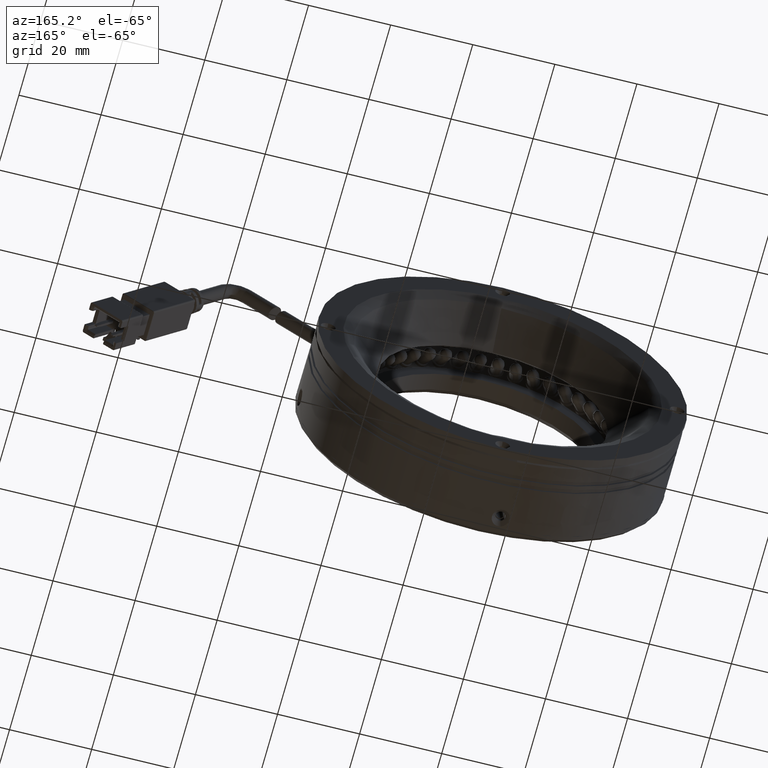
[diagram: clean part render]
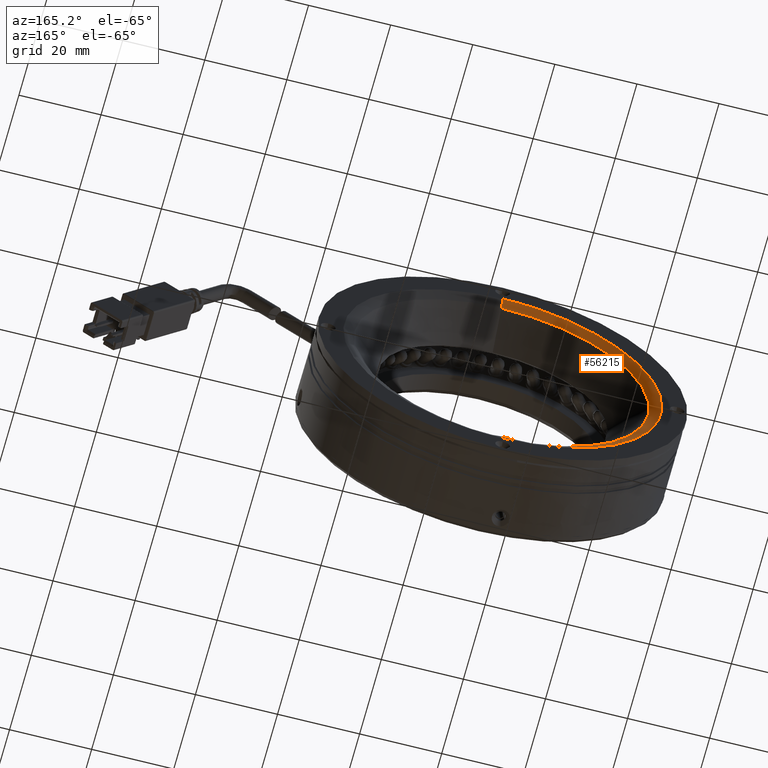
[diagram: same view with one face highlighted and labeled with its STEP entity id]
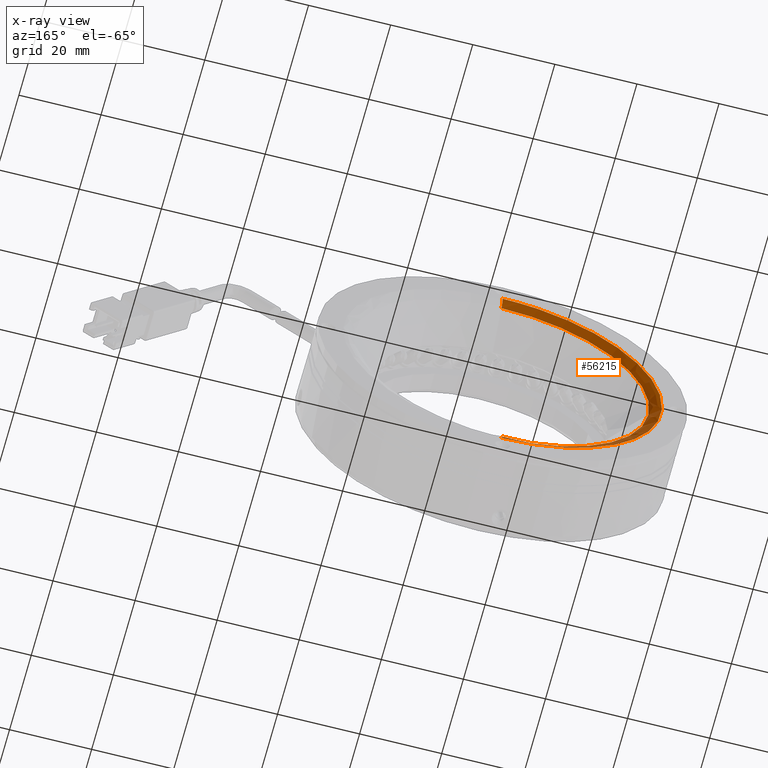
[diagram: x-ray of the same camera — body ghosted, the highlighted face saturated]
A machine part, auxiliary view. The second image highlights one B-rep face of the part: STEP entity #56215.
The next image is the same camera in x-ray: the body ghosted, the highlighted face saturated — about 0% of this face is hidden behind the body in this view.
In plain terms, the highlighted face is a freeform B-spline surface patch.
Its self-contained STEP definition (entity closure, byte-faithful):
#3422 = EDGE_CURVE ( 'NONE', #81952, #87832, #88767, .T. ) ;
#6177 = CARTESIAN_POINT ( 'NONE',  ( -53.99004085520083900, 38.97876601230222300, -42.62634949282938400 ) ) ;
#6282 = CIRCLE ( 'NONE', #92250, 4.000000000000003600 ) ;
#7083 = DIRECTION ( 'NONE',  ( 1.000000000000000000, 0.0000000000000000000, 0.0000000000000000000 ) ) ;
#7549 = CARTESIAN_POINT ( 'NONE',  ( -131.6468951046932100, 38.97876601230223100, 35.03050475666302800 ) ) ;
#7994 = CARTESIAN_POINT ( 'NONE',  ( -125.9900408552008200, 37.80719313704840100, -39.79792236808315000 ) ) ;
#11356 =( BOUNDED_CURVE ( )  B_SPLINE_CURVE ( 3, ( #123188, #81679, #113217, #50820 ),
 .UNSPECIFIED., .F., .F. ) 
 B_SPLINE_CURVE_WITH_KNOTS ( ( 4, 4 ),
 ( 0.0000000000000000000, 1.000000000000000000 ),
 .UNSPECIFIED. ) 
 CURVE ( )  GEOMETRIC_REPRESENTATION_ITEM ( )  RATIONAL_B_SPLINE_CURVE ( ( 1.000000000000000000, 0.3333333333333333700, 0.3333333333333333700, 1.000000000000000000 ) ) 
 REPRESENTATION_ITEM ( '' )  );
#18048 = CARTESIAN_POINT ( 'NONE',  ( -53.99004085520085300, 38.97876601230222300, -42.62634949282938400 ) ) ;
#23842 = CARTESIAN_POINT ( 'NONE',  ( -53.99004085520083200, 34.97876601230222300, 35.03050475666301400 ) ) ;
#28526 = CARTESIAN_POINT ( 'NONE',  ( -129.4968062881756900, 38.97876601230223800, 33.95546034840426600 ) ) ;
#29614 = AXIS2_PLACEMENT_3D ( 'NONE', #107833, #45463, #118326 ) ;
#30468 = AXIS2_PLACEMENT_3D ( 'NONE', #50461, #7083, #50422 ) ;
#34367 = DIRECTION ( 'NONE',  ( 0.0000000000000000000, 0.0000000000000000000, 1.000000000000000000 ) ) ;
#38970 = CARTESIAN_POINT ( 'NONE',  ( -53.99004085520085300, 38.97876601230223100, -41.55130508457061500 ) ) ;
#39190 = CIRCLE ( 'NONE', #29614, 36.00000000000000000 ) ;
#45463 = DIRECTION ( 'NONE',  ( 0.0000000000000000000, -1.000000000000000000, 0.0000000000000000000 ) ) ;
#49458 = CARTESIAN_POINT ( 'NONE',  ( -127.5103832375137200, 38.56736432820486000, 32.96224882307327400 ) ) ;
#50422 = DIRECTION ( 'NONE',  ( 0.0000000000000000000, 0.0000000000000000000, -1.000000000000000000 ) ) ;
#50461 = CARTESIAN_POINT ( 'NONE',  ( -53.99004085520083900, 34.97876601230222300, -42.62634949282938400 ) ) ;
#50820 = CARTESIAN_POINT ( 'NONE',  ( -53.99004085520083200, 38.97876601230222300, 35.03050475666301400 ) ) ;
#51273 = EDGE_CURVE ( 'NONE', #51725, #77164, #6282, .T. ) ;
#51725 = VERTEX_POINT ( 'NONE', #90449 ) ;
#53903 =( BOUNDED_SURFACE ( )  B_SPLINE_SURFACE ( 3, 3, ( 
 ( #90368, #7549, #80345, #18048 ),
 ( #90794, #28526, #101325, #38970 ),
 ( #111847, #49458, #122270, #59959 ),
 ( #132670, #70354, #7994, #80775 ) ),
 .UNSPECIFIED., .F., .F., .T. ) 
 B_SPLINE_SURFACE_WITH_KNOTS ( ( 4, 4 ),
 ( 4, 4 ),
 ( 0.0000000000000000000, 1.000000000000000000 ),
 ( 0.0000000000000000000, 1.000000000000000000 ),
 .UNSPECIFIED. ) 
 GEOMETRIC_REPRESENTATION_ITEM ( )  RATIONAL_B_SPLINE_SURFACE ( (
 ( 1.000000000000000000, 0.3333333333333334300, 0.3333333333333334300, 1.000000000000000000),
 ( 0.9492530216741906800, 0.3164176738913969700, 0.3164176738913969700, 0.9492530216741906800),
 ( 0.9492530216741906800, 0.3164176738913969700, 0.3164176738913969700, 0.9492530216741906800),
 ( 1.000000000000000000, 0.3333333333333334300, 0.3333333333333334300, 1.000000000000000000) ) ) 
 REPRESENTATION_ITEM ( '' )  SURFACE ( )  );
#56215 = ADVANCED_FACE ( 'NONE', ( #69599 ), #53903, .T. ) ;
#59959 = CARTESIAN_POINT ( 'NONE',  ( -53.99004085520085300, 38.56736432820486000, -40.55809355923963700 ) ) ;
#63911 = CARTESIAN_POINT ( 'NONE',  ( -53.99004085520083200, 37.80719313704840100, -39.79792236808318500 ) ) ;
#64830 = EDGE_CURVE ( 'NONE', #77164, #87832, #39190, .T. ) ;
#68970 = ORIENTED_EDGE ( 'NONE', *, *, #128003, .T. ) ;
#69599 = FACE_OUTER_BOUND ( 'NONE', #70897, .T. ) ;
#70354 = CARTESIAN_POINT ( 'NONE',  ( -125.9900408552008200, 37.80719313704840100, 32.20207763191682900 ) ) ;
#70897 = EDGE_LOOP ( 'NONE', ( #68970, #94084, #83377, #83452 ) ) ;
#77164 = VERTEX_POINT ( 'NONE', #123813 ) ;
#80345 = CARTESIAN_POINT ( 'NONE',  ( -131.6468951046932400, 38.97876601230223100, -42.62634949282935500 ) ) ;
#80775 = CARTESIAN_POINT ( 'NONE',  ( -53.99004085520085300, 37.80719313704840100, -39.79792236808317800 ) ) ;
#81679 = CARTESIAN_POINT ( 'NONE',  ( -131.6468951046932100, 38.97876601230221600, -42.62634949282938400 ) ) ;
#81952 = VERTEX_POINT ( 'NONE', #6177 ) ;
#83377 = ORIENTED_EDGE ( 'NONE', *, *, #64830, .T. ) ;
#83452 = ORIENTED_EDGE ( 'NONE', *, *, #3422, .F. ) ;
#87832 = VERTEX_POINT ( 'NONE', #63911 ) ;
#88767 = CIRCLE ( 'NONE', #30468, 4.000000000000003600 ) ;
#90368 = CARTESIAN_POINT ( 'NONE',  ( -53.99004085520083200, 38.97876601230222300, 35.03050475666301400 ) ) ;
#90449 = CARTESIAN_POINT ( 'NONE',  ( -53.99004085520083200, 38.97876601230222300, 35.03050475666301400 ) ) ;
#90794 = CARTESIAN_POINT ( 'NONE',  ( -53.99004085520082400, 38.97876601230223100, 33.95546034840425200 ) ) ;
#92250 = AXIS2_PLACEMENT_3D ( 'NONE', #23842, #96652, #34367 ) ;
#94084 = ORIENTED_EDGE ( 'NONE', *, *, #51273, .T. ) ;
#96652 = DIRECTION ( 'NONE',  ( -1.000000000000000000, 0.0000000000000000000, 1.224646799147353200E-016 ) ) ;
#101325 = CARTESIAN_POINT ( 'NONE',  ( -129.4968062881757200, 38.97876601230223800, -41.55130508457059300 ) ) ;
#107833 = CARTESIAN_POINT ( 'NONE',  ( -53.99004085520083900, 37.80719313704840100, -3.797922368083184200 ) ) ;
#111847 = CARTESIAN_POINT ( 'NONE',  ( -53.99004085520082400, 38.56736432820486000, 32.96224882307326700 ) ) ;
#113217 = CARTESIAN_POINT ( 'NONE',  ( -131.6468951046932100, 38.97876601230221600, 35.03050475666302100 ) ) ;
#118326 = DIRECTION ( 'NONE',  ( 0.0000000000000000000, 0.0000000000000000000, -1.000000000000000000 ) ) ;
#122270 = CARTESIAN_POINT ( 'NONE',  ( -127.5103832375137400, 38.56736432820486000, -40.55809355923960900 ) ) ;
#123188 = CARTESIAN_POINT ( 'NONE',  ( -53.99004085520083900, 38.97876601230222300, -42.62634949282938400 ) ) ;
#123813 = CARTESIAN_POINT ( 'NONE',  ( -53.99004085520083900, 37.80719313704840100, 32.20207763191682200 ) ) ;
#128003 = EDGE_CURVE ( 'NONE', #81952, #51725, #11356, .T. ) ;
#132670 = CARTESIAN_POINT ( 'NONE',  ( -53.99004085520083200, 37.80719313704840100, 32.20207763191681500 ) ) ;